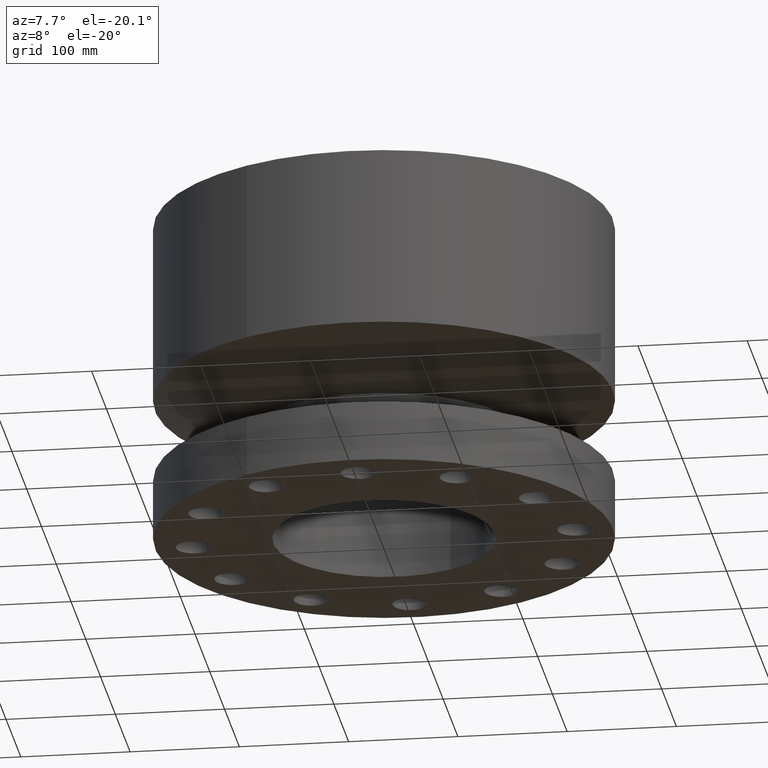
[diagram: clean part render]
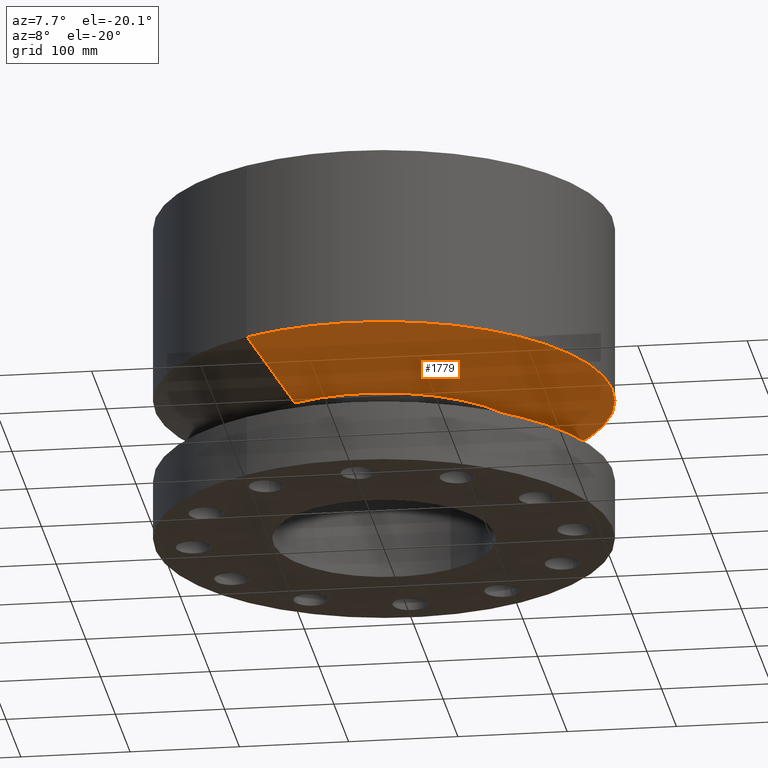
[diagram: same view with one face highlighted and labeled with its STEP entity id]
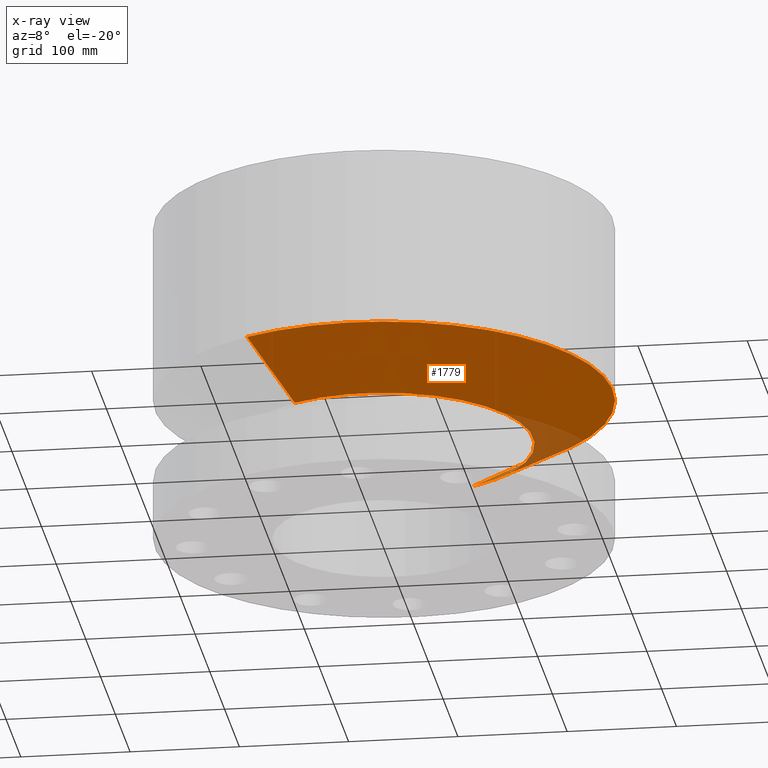
[diagram: x-ray of the same camera — body ghosted, the highlighted face saturated]
A machine part, auxiliary view. The second image highlights one B-rep face of the part: STEP entity #1779.
The next image is the same camera in x-ray: the body ghosted, the highlighted face saturated — about 6% of this face is hidden behind the body in this view.
In plain terms, the highlighted conical surface has half-angle 60 deg.
Its self-contained STEP definition (entity closure, byte-faithful):
#1207=AXIS2_PLACEMENT_3D('Circle Axis2P3D',#1205,#1206,$) ;
#1752=AXIS2_PLACEMENT_3D('Cone Axis2P3D',#1749,#1750,#1751) ;
#1763=AXIS2_PLACEMENT_3D('Circle Axis2P3D',#1761,#1762,$) ;
#1202=CARTESIAN_POINT('Vertex',(2.57691227001,4.71700627018,3.57000000001)) ;
#1205=CARTESIAN_POINT('Axis2P3D Location',(0.,0.,3.57000000001)) ;
#1209=CARTESIAN_POINT('Vertex',(-2.57691227001,-4.71700627018,3.57000000001)) ;
#1749=CARTESIAN_POINT('Axis2P3D Location',(0.,0.,3.57000000001)) ;
#1754=CARTESIAN_POINT('Line Origine',(3.26608648175,5.9785312029,4.39994101198)) ;
#1758=CARTESIAN_POINT('Vertex',(3.9552606935,7.24005613562,5.22988202394)) ;
#1761=CARTESIAN_POINT('Axis2P3D Location',(0.,0.,5.22988202394)) ;
#1765=CARTESIAN_POINT('Vertex',(-3.9552606935,-7.24005613562,5.22988202394)) ;
#1768=CARTESIAN_POINT('Line Origine',(-3.26608648175,-5.9785312029,4.39994101198)) ;
#1206=DIRECTION('Axis2P3D Direction',(0.,0.,-0.0393700787402)) ;
#1750=DIRECTION('Axis2P3D Direction',(-0.,-0.,0.0393700787402)) ;
#1751=DIRECTION('Axis2P3D XDirection',(0.0188750212049,0.0345504945626,0.)) ;
#1755=DIRECTION('Vector Direction',(0.0163462478604,0.0299216060045,0.0196850393701)) ;
#1762=DIRECTION('Axis2P3D Direction',(-0.,0.,0.0393700787402)) ;
#1769=DIRECTION('Vector Direction',(-0.0163462478604,-0.0299216060045,0.0196850393701)) ;
#1756=VECTOR('Line Direction',#1755,0.0393700787402) ;
#1770=VECTOR('Line Direction',#1769,0.0393700787402) ;
#1774=ORIENTED_EDGE('',*,*,#1211,.F.) ;
#1775=ORIENTED_EDGE('',*,*,#1760,.T.) ;
#1776=ORIENTED_EDGE('',*,*,#1767,.T.) ;
#1777=ORIENTED_EDGE('',*,*,#1772,.F.) ;
#1779=ADVANCED_FACE('PartBody',(#1778),#1753,.T.) ;
#1208=CIRCLE('generated circle',#1207,5.37500000002) ;
#1764=CIRCLE('generated circle',#1763,8.25000000003) ;
#1753=CONICAL_SURFACE('Cone',#1752,5.37500000002,1.0471975512) ;
#1211=EDGE_CURVE('',#1203,#1210,#1208,.T.) ;
#1760=EDGE_CURVE('',#1203,#1759,#1757,.T.) ;
#1767=EDGE_CURVE('',#1759,#1766,#1764,.F.) ;
#1772=EDGE_CURVE('',#1210,#1766,#1771,.T.) ;
#1773=EDGE_LOOP('',(#1774,#1775,#1776,#1777)) ;
#1778=FACE_OUTER_BOUND('',#1773,.T.) ;
#1757=LINE('Line',#1754,#1756) ;
#1771=LINE('Line',#1768,#1770) ;
#1203=VERTEX_POINT('',#1202) ;
#1210=VERTEX_POINT('',#1209) ;
#1759=VERTEX_POINT('',#1758) ;
#1766=VERTEX_POINT('',#1765) ;